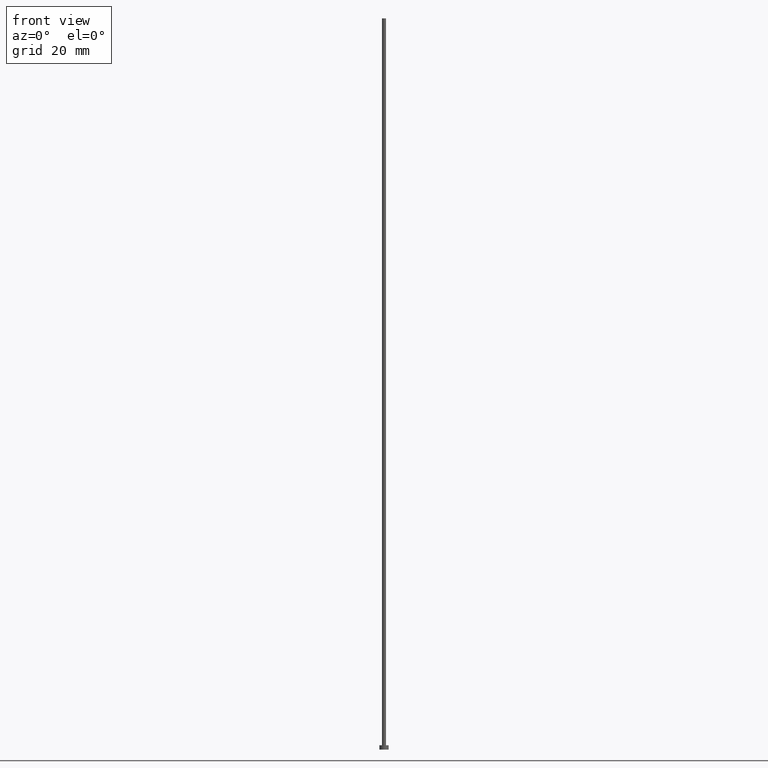
[diagram: clean part render]
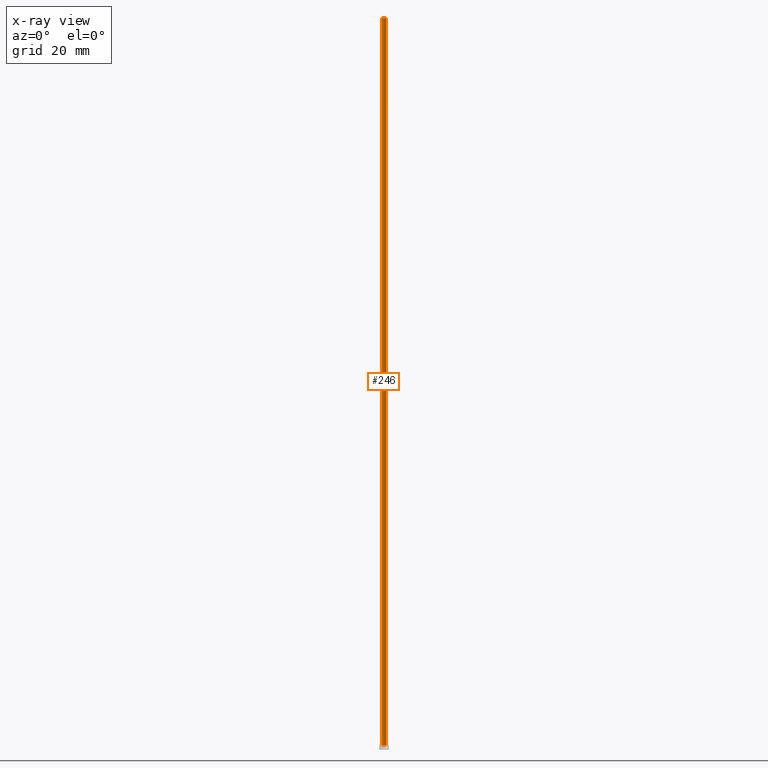
[diagram: x-ray — body ghosted, one internal face saturated and labeled with its STEP entity id]
A machine part, front view, then the same camera in x-ray: the body is ghosted and one INTERNAL B-rep face — a face not visible from any outside direction — is saturated and labeled: STEP entity #246.
In plain terms, the highlighted cylindrical surface (edge-blend (fillet) strip) has radius 0.55 mm, axis along (-0, -0, -1).
Its self-contained STEP definition (entity closure, byte-faithful):
#1 = CARTESIAN_POINT ( 'NONE',  ( -0.5500000000000000444, 0.000000000000000000, 200.0000000000000000 ) ) ;
#16 = CARTESIAN_POINT ( 'NONE',  ( -0.5500000000000000444, 0.000000000000000000, 200.0000000000000000 ) ) ;
#17 = VERTEX_POINT ( 'NONE', #23 ) ;
#18 = CARTESIAN_POINT ( 'NONE',  ( -0.5500000000000000444, 0.000000000000000000, 1.199999999999999956 ) ) ;
#23 = CARTESIAN_POINT ( 'NONE',  ( 0.5500000000000000444, 6.735557395310442516E-17, 200.0000000000000000 ) ) ;
#32 = DIRECTION ( 'NONE',  ( -0.000000000000000000, -0.000000000000000000, -1.000000000000000000 ) ) ;
#36 = ORIENTED_EDGE ( 'NONE', *, *, #120, .F. ) ;
#39 = ORIENTED_EDGE ( 'NONE', *, *, #211, .F. ) ;
#40 = ORIENTED_EDGE ( 'NONE', *, *, #136, .T. ) ;
#44 = CIRCLE ( 'NONE', #187, 0.5500000000000000444 ) ;
#55 = CARTESIAN_POINT ( 'NONE',  ( 0.000000000000000000, 0.000000000000000000, 200.0000000000000000 ) ) ;
#58 = LINE ( 'NONE', #16, #84 ) ;
#64 = CARTESIAN_POINT ( 'NONE',  ( 0.5500000000000000444, 6.735557395310442516E-17, 1.199999999999999956 ) ) ;
#74 = CARTESIAN_POINT ( 'NONE',  ( 0.000000000000000000, 0.000000000000000000, 200.0000000000000000 ) ) ;
#82 = LINE ( 'NONE', #231, #252 ) ;
#84 = VECTOR ( 'NONE', #135, 1000.000000000000000 ) ;
#86 = EDGE_CURVE ( 'NONE', #102, #241, #254, .T. ) ;
#102 = VERTEX_POINT ( 'NONE', #64 ) ;
#116 = DIRECTION ( 'NONE',  ( -1.000000000000000000, 0.000000000000000000, 0.000000000000000000 ) ) ;
#120 = EDGE_CURVE ( 'NONE', #201, #241, #58, .T. ) ;
#135 = DIRECTION ( 'NONE',  ( -0.000000000000000000, -0.000000000000000000, -1.000000000000000000 ) ) ;
#136 = EDGE_CURVE ( 'NONE', #17, #102, #82, .T. ) ;
#141 = DIRECTION ( 'NONE',  ( 1.000000000000000000, 0.000000000000000000, 0.000000000000000000 ) ) ;
#149 = DIRECTION ( 'NONE',  ( 1.000000000000000000, 0.000000000000000000, 0.000000000000000000 ) ) ;
#150 = DIRECTION ( 'NONE',  ( 0.000000000000000000, 0.000000000000000000, 1.000000000000000000 ) ) ;
#156 = CARTESIAN_POINT ( 'NONE',  ( 0.000000000000000000, 0.000000000000000000, 1.199999999999999956 ) ) ;
#171 = AXIS2_PLACEMENT_3D ( 'NONE', #156, #235, #141 ) ;
#176 = EDGE_LOOP ( 'NONE', ( #39, #40, #232, #36 ) ) ;
#187 = AXIS2_PLACEMENT_3D ( 'NONE', #74, #150, #149 ) ;
#191 = FACE_OUTER_BOUND ( 'NONE', #176, .T. ) ;
#201 = VERTEX_POINT ( 'NONE', #1 ) ;
#210 = CYLINDRICAL_SURFACE ( 'NONE', #244, 0.5500000000000000444 ) ;
#211 = EDGE_CURVE ( 'NONE', #17, #201, #44, .T. ) ;
#231 = CARTESIAN_POINT ( 'NONE',  ( 0.5500000000000000444, 6.735557395310442516E-17, 200.0000000000000000 ) ) ;
#232 = ORIENTED_EDGE ( 'NONE', *, *, #86, .T. ) ;
#235 = DIRECTION ( 'NONE',  ( 0.000000000000000000, 0.000000000000000000, 1.000000000000000000 ) ) ;
#241 = VERTEX_POINT ( 'NONE', #18 ) ;
#244 = AXIS2_PLACEMENT_3D ( 'NONE', #55, #32, #116 ) ;
#246 = ADVANCED_FACE ( 'NONE', ( #191 ), #210, .T. ) ;
#252 = VECTOR ( 'NONE', #253, 1000.000000000000000 ) ;
#253 = DIRECTION ( 'NONE',  ( -0.000000000000000000, -0.000000000000000000, -1.000000000000000000 ) ) ;
#254 = CIRCLE ( 'NONE', #171, 0.5500000000000000444 ) ;